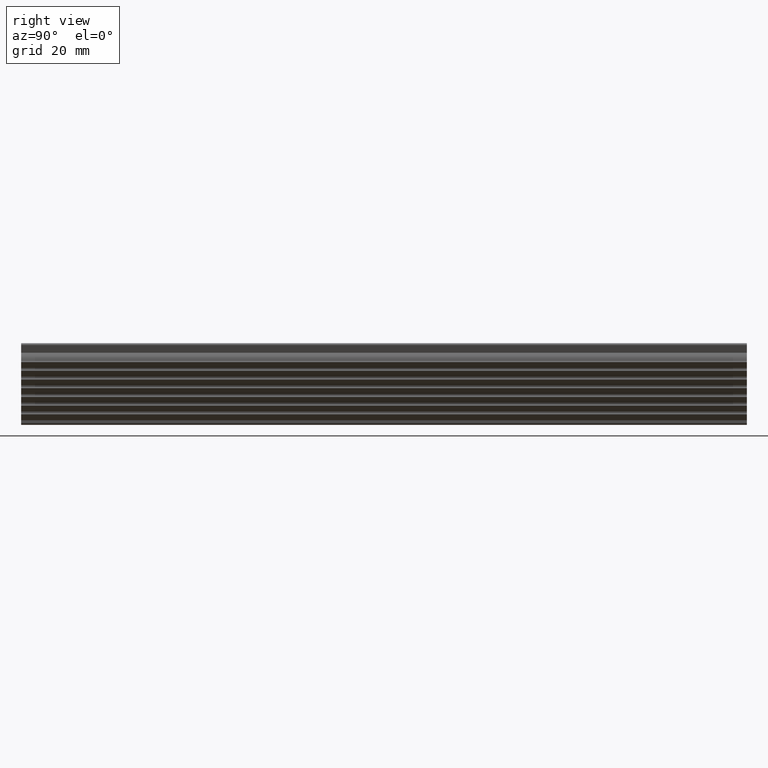
[diagram: clean part render]
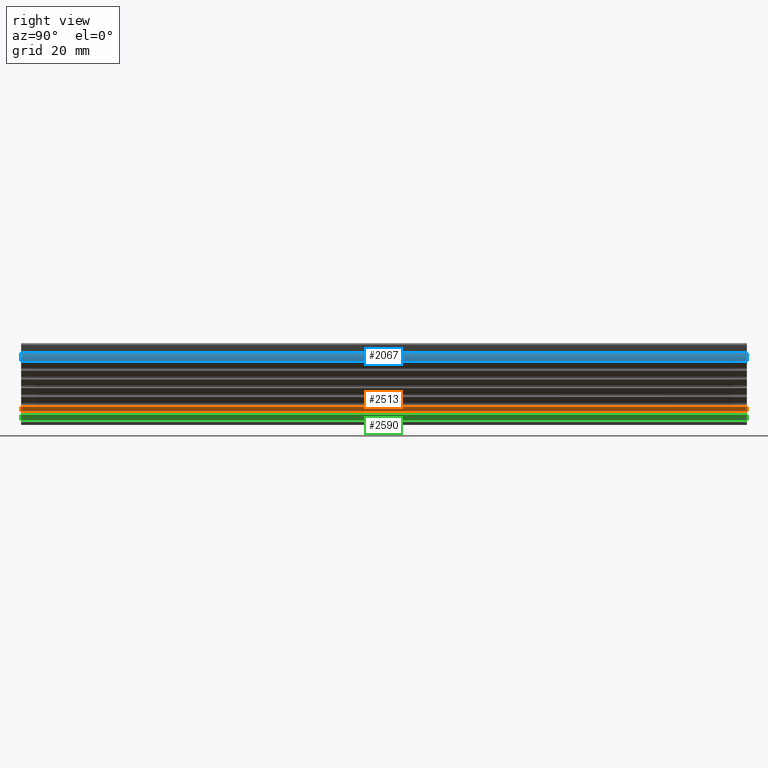
[diagram: same view with three faces highlighted in distinct colors, each labeled with its STEP entity id]
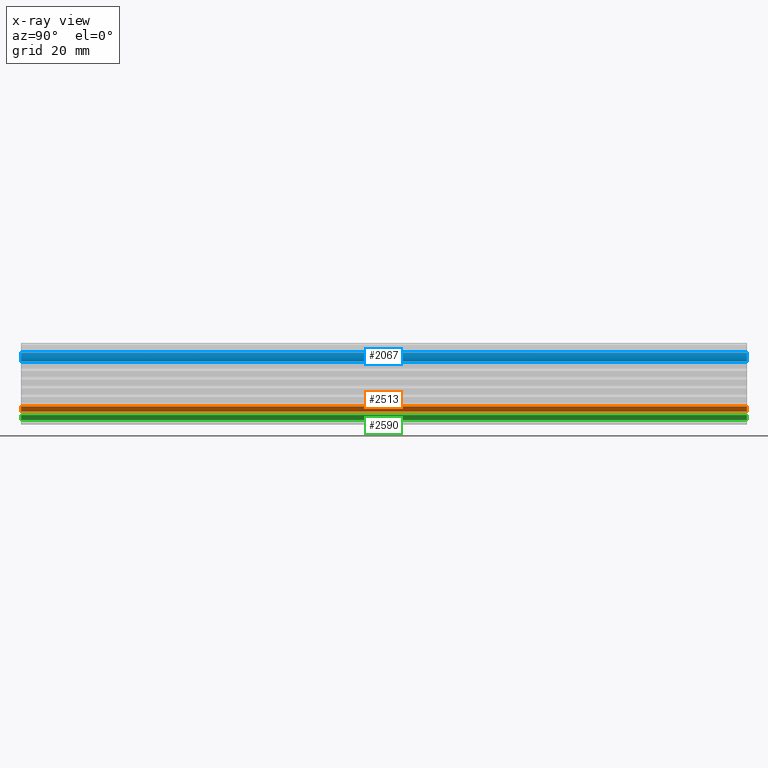
[diagram: x-ray of the same camera — body ghosted, the three highlighted faces saturated]
A machine part, right view with three faces highlighted in distinct colors.
The next image is the same camera in x-ray (body ghosted, the three faces saturated) — at least one of them is partly hidden behind the body in this view.
Their STEP definitions:

[orange] entity #2513 — the highlighted face is a freeform B-spline surface patch.
#466=CARTESIAN_POINT('',(3.750000000000000,0.0,-17.424264068717100));
#467=VERTEX_POINT('',#466);
#473=CARTESIAN_POINT('',(5.162132034356010,0.0,-16.012132034355901));
#474=VERTEX_POINT('',#473);
#475=CARTESIAN_POINT('',(3.750000000000000,0.0,-17.424264068717100));
#476=CARTESIAN_POINT('',(5.162132034356010,0.0,-16.012132034355901));
#477=QUASI_UNIFORM_CURVE('',1,(#475,#476),.UNSPECIFIED.,.F.,.U.);
#478=EDGE_CURVE('',#467,#474,#477,.T.);
#1134=CARTESIAN_POINT('',(5.162132034356010,200.0,-16.012132034355901));
#1135=VERTEX_POINT('',#1134);
#1151=CARTESIAN_POINT('',(3.750000000000000,200.0,-17.424264068717100));
#1152=VERTEX_POINT('',#1151);
#1153=CARTESIAN_POINT('',(3.750000000000000,200.0,-17.424264068717100));
#1154=CARTESIAN_POINT('',(5.162132034356010,200.0,-16.012132034355901));
#1155=QUASI_UNIFORM_CURVE('',1,(#1153,#1154),.UNSPECIFIED.,.F.,.U.);
#1156=EDGE_CURVE('',#1152,#1135,#1155,.T.);
#2488=CARTESIAN_POINT('',(5.162132034356010,200.0,-16.012132034355901));
#2489=CARTESIAN_POINT('',(5.162132034356010,0.0,-16.012132034355901));
#2490=QUASI_UNIFORM_CURVE('',1,(#2488,#2489),.UNSPECIFIED.,.F.,.U.);
#2491=EDGE_CURVE('',#1135,#474,#2490,.T.);
#2498=CARTESIAN_POINT('',(5.232667848074343,-9.989999612361194,-15.941596220637321));
#2499=CARTESIAN_POINT('',(3.679463555009454,-9.989999612361194,-17.494800513707890));
#2500=CARTESIAN_POINT('',(5.232667848074343,209.990004976779200,-15.941596220637321));
#2501=CARTESIAN_POINT('',(3.679463555009454,209.990004976779200,-17.494800513707890));
#2502=B_SPLINE_SURFACE_WITH_KNOTS('',1,1,((#2498,#2500),(#2499,#2501)),.UNSPECIFIED.,.F.,.F.,.U.,(2,2),(2,2),(0.0,2.196562576392505),(0.0,219.980004589140410),.UNSPECIFIED.);
#2503=ORIENTED_EDGE('',*,*,#478,.F.);
#2504=CARTESIAN_POINT('',(3.750000000000000,200.0,-17.424264068717100));
#2505=CARTESIAN_POINT('',(3.750000000000000,0.0,-17.424264068717100));
#2506=QUASI_UNIFORM_CURVE('',1,(#2504,#2505),.UNSPECIFIED.,.F.,.U.);
#2507=EDGE_CURVE('',#1152,#467,#2506,.T.);
#2508=ORIENTED_EDGE('',*,*,#2507,.F.);
#2509=ORIENTED_EDGE('',*,*,#1156,.T.);
#2510=ORIENTED_EDGE('',*,*,#2491,.T.);
#2511=EDGE_LOOP('',(#2503,#2508,#2509,#2510));
#2512=FACE_OUTER_BOUND('',#2511,.T.);
#2513=ADVANCED_FACE('',(#2512),#2502,.T.);

[blue] entity #2067 — the highlighted face is a freeform B-spline surface patch.
#687=CARTESIAN_POINT('',(3.749999999999910,0.0,-3.699999999999931));
#688=VERTEX_POINT('',#687);
#694=CARTESIAN_POINT('',(2.946911364538235,0.0,-1.229981137425950));
#695=VERTEX_POINT('',#694);
#696=CARTESIAN_POINT('',(3.749999999999910,0.0,-3.699999999999931));
#697=CARTESIAN_POINT('',(3.750000000000040,0.0,-2.334434610987215));
#698=CARTESIAN_POINT('',(2.946911364538234,0.0,-1.229981137425950));
#706=(BOUNDED_CURVE()B_SPLINE_CURVE(2,(#696,#697,#698),.UNSPECIFIED.,.F.,.U.)CURVE()GEOMETRIC_REPRESENTATION_ITEM()QUASI_UNIFORM_CURVE()RATIONAL_B_SPLINE_CURVE((1.0,0.950996430100592,1.0))REPRESENTATION_ITEM(''));
#707=EDGE_CURVE('',#688,#695,#706,.T.);
#915=CARTESIAN_POINT('',(2.946911364538235,200.0,-1.229981137425950));
#916=VERTEX_POINT('',#915);
#922=CARTESIAN_POINT('',(3.749999999999910,200.0,-3.699999999999931));
#923=VERTEX_POINT('',#922);
#924=CARTESIAN_POINT('',(3.750000000000040,200.0,-3.699999999999931));
#925=CARTESIAN_POINT('',(3.750000000000040,200.000000000000060,-2.334434610987215));
#926=CARTESIAN_POINT('',(2.946911364538234,200.0,-1.229981137425950));
#934=(BOUNDED_CURVE()B_SPLINE_CURVE(2,(#924,#925,#926),.UNSPECIFIED.,.F.,.U.)CURVE()GEOMETRIC_REPRESENTATION_ITEM()QUASI_UNIFORM_CURVE()RATIONAL_B_SPLINE_CURVE((1.0,0.950996430100592,1.0))REPRESENTATION_ITEM(''));
#935=EDGE_CURVE('',#923,#916,#934,.T.);
#2033=CARTESIAN_POINT('',(2.946911364538235,200.0,-1.229981137425950));
#2034=CARTESIAN_POINT('',(2.946911364538235,0.0,-1.229981137425950));
#2035=QUASI_UNIFORM_CURVE('',1,(#2033,#2034),.UNSPECIFIED.,.F.,.U.);
#2036=EDGE_CURVE('',#916,#695,#2035,.T.);
#2043=CARTESIAN_POINT('',(2.869438263034311,205.000000000000060,-1.126805561582185));
#2044=CARTESIAN_POINT('',(2.869438263034311,-5.125000000000001,-1.126805561582185));
#2045=CARTESIAN_POINT('',(3.794653701144002,205.000000000000030,-2.320339746546383));
#2046=CARTESIAN_POINT('',(3.794653701144002,-5.125000000000000,-2.320339746546383));
#2047=CARTESIAN_POINT('',(3.747994824341421,205.000000000000060,-3.829766924919087));
#2048=CARTESIAN_POINT('',(3.747994824341421,-5.125000000000001,-3.829766924919087));
#2056=(BOUNDED_SURFACE()B_SPLINE_SURFACE(1,2,((#2043,#2045,#2047),(#2044,#2046,#2048)),.UNSPECIFIED.,.F.,.F.,.U.)B_SPLINE_SURFACE_WITH_KNOTS((2,2),(3,3),(0.0,210.125000000000000),(0.0,2.928513577291127),.UNSPECIFIED.)GEOMETRIC_REPRESENTATION_ITEM()RATIONAL_B_SPLINE_SURFACE(((0.997665718996793,0.935953967000320,0.991577395722418),(0.997665718996793,0.935953967000320,0.991577395722418)))REPRESENTATION_ITEM('')SURFACE());
#2057=ORIENTED_EDGE('',*,*,#707,.F.);
#2058=CARTESIAN_POINT('',(3.749999999999910,200.0,-3.699999999999931));
#2059=CARTESIAN_POINT('',(3.749999999999910,0.0,-3.699999999999931));
#2060=QUASI_UNIFORM_CURVE('',1,(#2058,#2059),.UNSPECIFIED.,.F.,.U.);
#2061=EDGE_CURVE('',#923,#688,#2060,.T.);
#2062=ORIENTED_EDGE('',*,*,#2061,.F.);
#2063=ORIENTED_EDGE('',*,*,#935,.T.);
#2064=ORIENTED_EDGE('',*,*,#2036,.T.);
#2065=EDGE_LOOP('',(#2057,#2062,#2063,#2064));
#2066=FACE_OUTER_BOUND('',#2065,.T.);
#2067=ADVANCED_FACE('',(#2066),#2056,.T.);

[green] entity #2590 — the highlighted face is a freeform B-spline surface patch.
#428=CARTESIAN_POINT('',(3.750000000000000,0.0,-19.824264068716950));
#429=VERTEX_POINT('',#428);
#435=CARTESIAN_POINT('',(5.162132034355949,0.0,-18.412132034355999));
#436=VERTEX_POINT('',#435);
#437=CARTESIAN_POINT('',(3.750000000000000,0.0,-19.824264068716950));
#438=CARTESIAN_POINT('',(5.162132034355949,0.0,-18.412132034355999));
#439=QUASI_UNIFORM_CURVE('',1,(#437,#438),.UNSPECIFIED.,.F.,.U.);
#440=EDGE_CURVE('',#429,#436,#439,.T.);
#1172=CARTESIAN_POINT('',(5.162132034355949,200.0,-18.412132034355999));
#1173=VERTEX_POINT('',#1172);
#1189=CARTESIAN_POINT('',(3.750000000000000,200.0,-19.824264068716950));
#1190=VERTEX_POINT('',#1189);
#1191=CARTESIAN_POINT('',(3.750000000000000,200.0,-19.824264068716950));
#1192=CARTESIAN_POINT('',(5.162132034355949,200.0,-18.412132034355999));
#1193=QUASI_UNIFORM_CURVE('',1,(#1191,#1192),.UNSPECIFIED.,.F.,.U.);
#1194=EDGE_CURVE('',#1190,#1173,#1193,.T.);
#2565=CARTESIAN_POINT('',(5.162132034355949,200.0,-18.412132034355999));
#2566=CARTESIAN_POINT('',(5.162132034355949,0.0,-18.412132034355999));
#2567=QUASI_UNIFORM_CURVE('',1,(#2565,#2566),.UNSPECIFIED.,.F.,.U.);
#2568=EDGE_CURVE('',#1173,#436,#2567,.T.);
#2575=CARTESIAN_POINT('',(5.232668036825285,-9.989999612361194,-18.341596031886390));
#2576=CARTESIAN_POINT('',(3.679463757647224,-9.989999612361194,-19.894800311070000));
#2577=CARTESIAN_POINT('',(5.232668036825285,209.990004976779200,-18.341596031886390));
#2578=CARTESIAN_POINT('',(3.679463757647224,209.990004976779200,-19.894800311070000));
#2579=B_SPLINE_SURFACE_WITH_KNOTS('',1,1,((#2575,#2577),(#2576,#2578)),.UNSPECIFIED.,.F.,.F.,.U.,(2,2),(2,2),(0.0,2.196562556753467),(0.0,219.980004589140410),.UNSPECIFIED.);
#2580=ORIENTED_EDGE('',*,*,#440,.F.);
#2581=CARTESIAN_POINT('',(3.750000000000000,200.0,-19.824264068716950));
#2582=CARTESIAN_POINT('',(3.750000000000000,0.0,-19.824264068716950));
#2583=QUASI_UNIFORM_CURVE('',1,(#2581,#2582),.UNSPECIFIED.,.F.,.U.);
#2584=EDGE_CURVE('',#1190,#429,#2583,.T.);
#2585=ORIENTED_EDGE('',*,*,#2584,.F.);
#2586=ORIENTED_EDGE('',*,*,#1194,.T.);
#2587=ORIENTED_EDGE('',*,*,#2568,.T.);
#2588=EDGE_LOOP('',(#2580,#2585,#2586,#2587));
#2589=FACE_OUTER_BOUND('',#2588,.T.);
#2590=ADVANCED_FACE('',(#2589),#2579,.T.);